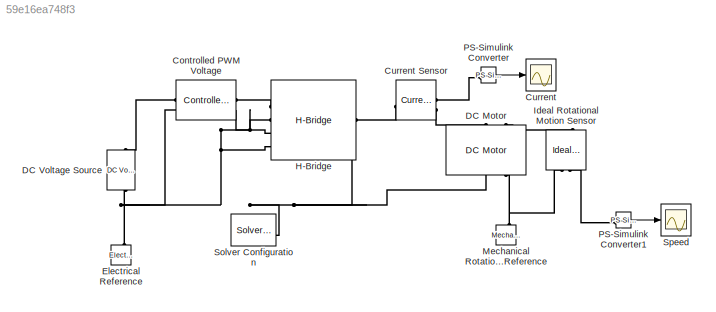
MODEL slx_59e16ea748f3
KIND model
CONFIG EnableMultiTasking = on
CONFIG SolverName = ode15s
BLOCK [Reference] Controlled PWM Voltage  REF=ee_lib/Integrated Circuits/Controlled PWM
Voltage
  SourceBlock = ee_lib/Integrated Circuits/Controlled PWM\nVoltage
  SourceType = Controlled PWM\nVoltage
BLOCK [Scope] Current
  DataLoggingDecimateData = on
  DataLoggingDecimation = 1
  DataLoggingLimitDataPoints = on
  DataLoggingSaveFormat = Structure With Time
  Floating = off
  GraphicalSettings = {"GraphicalSettings":{"LegacySettings":true,"Style":{"Style":{"AxesColor":"[0 0 0]","ChannelNames":[""],"ColorOrder":"[1 1 0.0666666666666667;0.0745098039215686 0.623529411764706 1;1 0.411764705882353 0.16078431372549;0.392156862745098 0.831372549019608 0.0745098039215686;0.717647058823529 0.274509803921569 1;0.0588235294117647 1 1;1 0.0745098039215686 0.650980392156863]","CurrentConfiguration":"e...<+343ch>
  NumInputPorts = 1
  WasSavedAsWebScope = on
  WindowPosition = [750 539 324 239]
BLOCK [Reference] Current Sensor  REF=fl_lib/Electrical/Electrical Sensors/Current Sensor
  SourceBlock = fl_lib/Electrical/Electrical Sensors/Current Sensor
  SourceType = Current Sensor
BLOCK [Reference] DC Motor  REF=ee_lib/Electromechanical/Brushed Motors/DC Motor
  NameLocation = left
  SourceBlock = ee_lib/Electromechanical/Brushed Motors/DC Motor
  SourceType = DC Motor
BLOCK [Reference] DC Voltage Source  REF=fl_lib/Electrical/Electrical Sources/DC Voltage Source
  NameLocation = right
  SourceBlock = fl_lib/Electrical/Electrical Sources/DC Voltage Source
  SourceType = DC Voltage Source
BLOCK [Reference] Electrical Reference  REF=fl_lib/Electrical/Electrical Elements/Electrical Reference
  NameLocation = right
  SourceBlock = fl_lib/Electrical/Electrical Elements/Electrical Reference
  SourceType = Electrical Reference
BLOCK [Reference] H-Bridge  REF=ee_lib/Semiconductors &
Converters/Converters/H-Bridge
  SourceBlock = ee_lib/Semiconductors &\nConverters/Converters/H-Bridge
  SourceType = H-Bridge
BLOCK [Reference] Ideal Rotational Motion Sensor  REF=fl_lib/Mechanical/Mechanical Sensors/Ideal Rotational
Motion Sensor
  NameLocation = right
  SourceBlock = fl_lib/Mechanical/Mechanical Sensors/Ideal Rotational\nMotion Sensor
  SourceType = Ideal Rotational\nMotion Sensor
BLOCK [Reference] Mechanical Rotational Reference  REF=fl_lib/Mechanical/Rotational Elements/Mechanical
Rotational Reference
  NameLocation = right
  SourceBlock = fl_lib/Mechanical/Rotational Elements/Mechanical\nRotational Reference
  SourceType = Mechanical\nRotational Reference
BLOCK [Reference] PS-Simulink Converter  REF=nesl_utility/PS-Simulink
Converter
  SourceBlock = nesl_utility/PS-Simulink\nConverter
  SourceType = PS-Simulink\nConverter
BLOCK [Reference] PS-Simulink Converter1  REF=nesl_utility/PS-Simulink
Converter
  SourceBlock = nesl_utility/PS-Simulink\nConverter
  SourceType = PS-Simulink\nConverter
BLOCK [Reference] Solver Configuration  REF=nesl_utility/Solver
Configuration
  SourceBlock = nesl_utility/Solver\nConfiguration
  SourceType = Solver\nConfiguration
BLOCK [Scope] Speed
  ActiveDisplayYMaximum = 1750
  ActiveDisplayYMinimum = 0
  DataLoggingDecimation = 1
  DataLoggingLimitDataPoints = on
  DataLoggingSaveFormat = Structure With Time
  DataLoggingVariableName = ScopeData1
  Floating = off
  GraphicalSettings = {"GraphicalSettings":{"LegacySettings":true,"Style":{"AxesScalingProperties":{"ScaleAxesLimitsAtStop":false},"Style":{"AxesColor":"[0 0 0]","ChannelNames":[""],"ColorOrder":"[1 1 0.0666666666666667;0.0745098039215686 0.623529411764706 1;1 0.411764705882353 0.16078431372549;0.392156862745098 0.831372549019608 0.0745098039215686;0.717647058823529 0.274509803921569 1;0.0588235294117647 1 1;1 0.074509...<+399ch>
  MultipleDisplayCache = [{"MaxYLimMag":10,"MaxYLimReal":1750,"MinYLimMag":0,"MinYLimReal":0,"PlotAsMagnitudePhase":false,"ShowGrid":true,"ShowLegend":false,"Title":"%<SignalLabel>","YLabel":""}]
  NumInputPorts = 1
  WasSavedAsWebScope = on
LINE PS-Simulink Converter1:1 -> Speed:1
LINE PS-Simulink Converter:1 -> Current:1
PLINE Controlled PWM Voltage:LConn1 -- DC Voltage Source:LConn1
PNET net1: Controlled PWM Voltage:LConn2 -- Controlled PWM Voltage:RConn2 -- DC Motor:RConn1 -- DC Voltage Source:RConn1 -- Electrical Reference:LConn1 -- H-Bridge:LConn2 -- H-Bridge:LConn3 -- H-Bridge:LConn4 -- H-Bridge:RConn2 -- Solver Configuration:RConn1
PLINE Controlled PWM Voltage:RConn1 -- H-Bridge:LConn1
PLINE Current Sensor:LConn1 -- H-Bridge:RConn1
PLINE Current Sensor:RConn1 -- PS-Simulink Converter:LConn1
PLINE Current Sensor:RConn2 -- DC Motor:LConn1
PLINE DC Motor:LConn2 -- Ideal Rotational Motion Sensor:LConn1
PNET net2: DC Motor:RConn2 -- Ideal Rotational Motion Sensor:RConn1 -- Mechanical Rotational Reference:LConn1
PLINE Ideal Rotational Motion Sensor:RConn2 -- PS-Simulink Converter1:LConn1
note: PNET lines group multi-terminal physical nets as a canonical sorted terminal list (undirected conserving connections); 2-terminal nets keep the pairwise PLINE form
